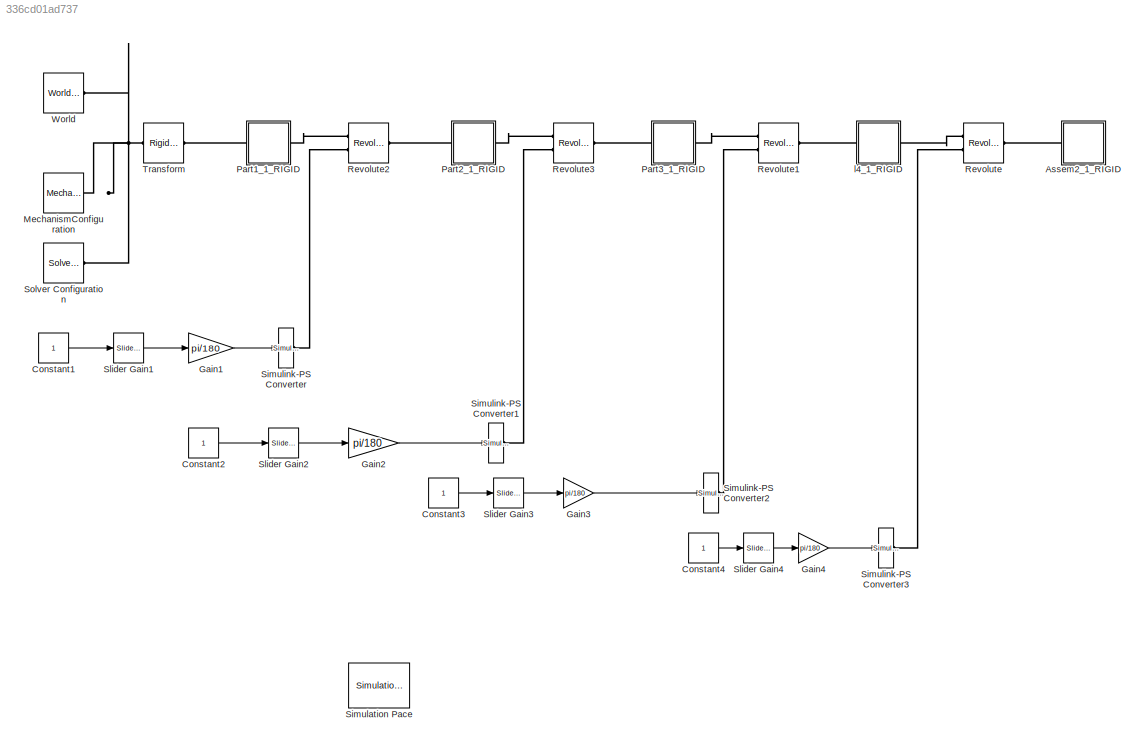
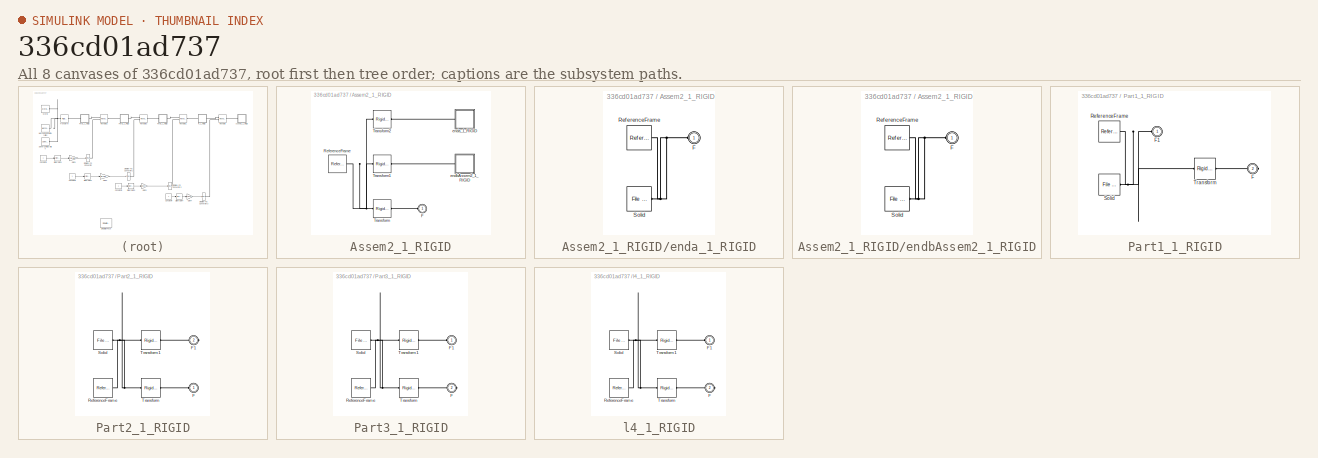
[diagram: thumbnail index - all 8 canvases of the model, root first then tree order]
MODEL slx_336cd01ad737
KIND model
CONFIG AbsTol = auto
CONFIG EnableMultiTasking = off
CONFIG FixedStep = 0.1
CONFIG MaxStep = auto
CONFIG MinStep = auto
CONFIG RelTol = 1e-3
CONFIG SampleTimeConstraint = Unconstrained
CONFIG SolverName = VariableStepAuto
CONFIG StartFcn = 1
CONFIG StartTime = 0.0
CONFIG StopTime = inf
WORKSPACE source: external: MATLAB File  (data not in archive)
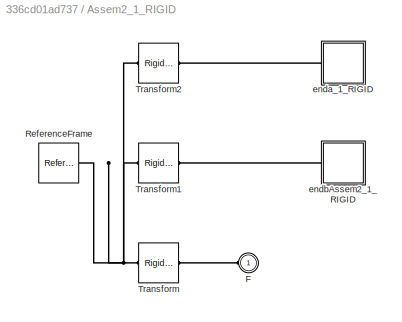
BLOCK [SubSystem] Assem2_1_RIGID
  Ports = [0, 0, 0, 0, 0, 1]
  RequestExecContextInheritance = off
BLOCK [PMIOPort] Assem2_1_RIGID/F
  Side = Left
BLOCK [Reference] Assem2_1_RIGID/ReferenceFrame  REF=sm_lib/Frames and
Transforms/Reference
Frame
  Ports = [0, 0, 0, 0, 0, 0, 1]
  SourceBlock = sm_lib/Frames and\nTransforms/Reference\nFrame
  SourceProductBaseCode = MS
  SourceType = Reference\nFrame
BLOCK [Reference] Assem2_1_RIGID/Transform  REF=sm_lib/Frames and
Transforms/Rigid
Transform
  Ports = [0, 0, 0, 0, 0, 1, 1]
  SourceBlock = sm_lib/Frames and\nTransforms/Rigid\nTransform
  SourceProductBaseCode = MS
  SourceType = Rigid\nTransform
BLOCK [Reference] Assem2_1_RIGID/Transform1  REF=sm_lib/Frames and
Transforms/Rigid
Transform
  Ports = [0, 0, 0, 0, 0, 1, 1]
  SourceBlock = sm_lib/Frames and\nTransforms/Rigid\nTransform
  SourceProductBaseCode = MS
  SourceType = Rigid\nTransform
BLOCK [Reference] Assem2_1_RIGID/Transform2  REF=sm_lib/Frames and
Transforms/Rigid
Transform
  Ports = [0, 0, 0, 0, 0, 1, 1]
  SourceBlock = sm_lib/Frames and\nTransforms/Rigid\nTransform
  SourceProductBaseCode = MS
  SourceType = Rigid\nTransform
BLOCK [SubSystem] Assem2_1_RIGID/enda_1_RIGID
  Ports = [0, 0, 0, 0, 0, 1]
  RequestExecContextInheritance = off
BLOCK [PMIOPort] Assem2_1_RIGID/enda_1_RIGID/F
  Side = Left
BLOCK [Reference] Assem2_1_RIGID/enda_1_RIGID/ReferenceFrame  REF=sm_lib/Frames and
Transforms/Reference
Frame
  Ports = [0, 0, 0, 0, 0, 0, 1]
  SourceBlock = sm_lib/Frames and\nTransforms/Reference\nFrame
  SourceProductBaseCode = MS
  SourceType = Reference\nFrame
BLOCK [Reference] Assem2_1_RIGID/enda_1_RIGID/Solid  REF=sm_lib/Body Elements/File Solid
  Ports = [0, 0, 0, 0, 0, 0, 1]
  SourceBlock = sm_lib/Body Elements/File Solid
  SourceProductBaseCode = MS
  SourceType = File Solid
BLOCK [SubSystem] Assem2_1_RIGID/endbAssem2_1_RIGID
  Ports = [0, 0, 0, 0, 0, 1]
  RequestExecContextInheritance = off
BLOCK [PMIOPort] Assem2_1_RIGID/endbAssem2_1_RIGID/F
  Side = Left
BLOCK [Reference] Assem2_1_RIGID/endbAssem2_1_RIGID/ReferenceFrame  REF=sm_lib/Frames and
Transforms/Reference
Frame
  Ports = [0, 0, 0, 0, 0, 0, 1]
  SourceBlock = sm_lib/Frames and\nTransforms/Reference\nFrame
  SourceProductBaseCode = MS
  SourceType = Reference\nFrame
BLOCK [Reference] Assem2_1_RIGID/endbAssem2_1_RIGID/Solid  REF=sm_lib/Body Elements/File Solid
  Ports = [0, 0, 0, 0, 0, 0, 1]
  SourceBlock = sm_lib/Body Elements/File Solid
  SourceProductBaseCode = MS
  SourceType = File Solid
BLOCK [Constant] Constant1
  SampleTime = 0.1
BLOCK [Constant] Constant2
  SampleTime = 0.1
BLOCK [Constant] Constant3
  SampleTime = 0.1
BLOCK [Constant] Constant4
  SampleTime = 0.1
BLOCK [Gain] Gain1
  Gain = pi/180
BLOCK [Gain] Gain2
  Gain = pi/180
BLOCK [Gain] Gain3
  Gain = pi/180
BLOCK [Gain] Gain4
  Gain = pi/180
BLOCK [Reference] MechanismConfiguration  REF=sm_lib/Utilities/Mechanism
Configuration
  Ports = [0, 0, 0, 0, 0, 0, 1]
  SourceBlock = sm_lib/Utilities/Mechanism\nConfiguration
  SourceProductBaseCode = MS
  SourceType = Mechanism\nConfiguration
BLOCK [SubSystem] Part1_1_RIGID
  Ports = [0, 0, 0, 0, 0, 1, 1]
  RequestExecContextInheritance = off
BLOCK [PMIOPort] Part1_1_RIGID/F
  Port = 2
  Side = Right
BLOCK [PMIOPort] Part1_1_RIGID/F1
  Side = Left
BLOCK [Reference] Part1_1_RIGID/ReferenceFrame  REF=sm_lib/Frames and
Transforms/Reference
Frame
  Ports = [0, 0, 0, 0, 0, 0, 1]
  SourceBlock = sm_lib/Frames and\nTransforms/Reference\nFrame
  SourceProductBaseCode = MS
  SourceType = Reference\nFrame
BLOCK [Reference] Part1_1_RIGID/Solid  REF=sm_lib/Body Elements/File Solid
  Ports = [0, 0, 0, 0, 0, 0, 1]
  SourceBlock = sm_lib/Body Elements/File Solid
  SourceProductBaseCode = MS
  SourceType = File Solid
BLOCK [Reference] Part1_1_RIGID/Transform  REF=sm_lib/Frames and
Transforms/Rigid
Transform
  Ports = [0, 0, 0, 0, 0, 1, 1]
  SourceBlock = sm_lib/Frames and\nTransforms/Rigid\nTransform
  SourceProductBaseCode = MS
  SourceType = Rigid\nTransform
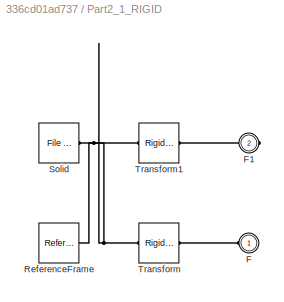
BLOCK [SubSystem] Part2_1_RIGID
  Ports = [0, 0, 0, 0, 0, 1, 1]
  RequestExecContextInheritance = off
BLOCK [PMIOPort] Part2_1_RIGID/F
  Side = Left
BLOCK [PMIOPort] Part2_1_RIGID/F1
  Port = 2
  Side = Right
BLOCK [Reference] Part2_1_RIGID/ReferenceFrame  REF=sm_lib/Frames and
Transforms/Reference
Frame
  Ports = [0, 0, 0, 0, 0, 0, 1]
  SourceBlock = sm_lib/Frames and\nTransforms/Reference\nFrame
  SourceProductBaseCode = MS
  SourceType = Reference\nFrame
BLOCK [Reference] Part2_1_RIGID/Solid  REF=sm_lib/Body Elements/File Solid
  Ports = [0, 0, 0, 0, 0, 0, 1]
  SourceBlock = sm_lib/Body Elements/File Solid
  SourceProductBaseCode = MS
  SourceType = File Solid
BLOCK [Reference] Part2_1_RIGID/Transform  REF=sm_lib/Frames and
Transforms/Rigid
Transform
  Ports = [0, 0, 0, 0, 0, 1, 1]
  SourceBlock = sm_lib/Frames and\nTransforms/Rigid\nTransform
  SourceProductBaseCode = MS
  SourceType = Rigid\nTransform
BLOCK [Reference] Part2_1_RIGID/Transform1  REF=sm_lib/Frames and
Transforms/Rigid
Transform
  Ports = [0, 0, 0, 0, 0, 1, 1]
  SourceBlock = sm_lib/Frames and\nTransforms/Rigid\nTransform
  SourceProductBaseCode = MS
  SourceType = Rigid\nTransform
BLOCK [SubSystem] Part3_1_RIGID
  Ports = [0, 0, 0, 0, 0, 1, 1]
  RequestExecContextInheritance = off
BLOCK [PMIOPort] Part3_1_RIGID/F
  Port = 2
  Side = Right
BLOCK [PMIOPort] Part3_1_RIGID/F1
  Side = Left
BLOCK [Reference] Part3_1_RIGID/ReferenceFrame  REF=sm_lib/Frames and
Transforms/Reference
Frame
  Ports = [0, 0, 0, 0, 0, 0, 1]
  SourceBlock = sm_lib/Frames and\nTransforms/Reference\nFrame
  SourceProductBaseCode = MS
  SourceType = Reference\nFrame
BLOCK [Reference] Part3_1_RIGID/Solid  REF=sm_lib/Body Elements/File Solid
  Ports = [0, 0, 0, 0, 0, 0, 1]
  SourceBlock = sm_lib/Body Elements/File Solid
  SourceProductBaseCode = MS
  SourceType = File Solid
BLOCK [Reference] Part3_1_RIGID/Transform  REF=sm_lib/Frames and
Transforms/Rigid
Transform
  Ports = [0, 0, 0, 0, 0, 1, 1]
  SourceBlock = sm_lib/Frames and\nTransforms/Rigid\nTransform
  SourceProductBaseCode = MS
  SourceType = Rigid\nTransform
BLOCK [Reference] Part3_1_RIGID/Transform1  REF=sm_lib/Frames and
Transforms/Rigid
Transform
  Ports = [0, 0, 0, 0, 0, 1, 1]
  SourceBlock = sm_lib/Frames and\nTransforms/Rigid\nTransform
  SourceProductBaseCode = MS
  SourceType = Rigid\nTransform
BLOCK [Reference] Revolute  REF=sm_lib/Joints/Revolute Joint
  Ports = [0, 0, 0, 0, 0, 2, 1]
  SourceBlock = sm_lib/Joints/Revolute Joint
  SourceProductBaseCode = MS
  SourceType = Revolute Joint
BLOCK [Reference] Revolute1  REF=sm_lib/Joints/Revolute Joint
  Ports = [0, 0, 0, 0, 0, 2, 1]
  SourceBlock = sm_lib/Joints/Revolute Joint
  SourceProductBaseCode = MS
  SourceType = Revolute Joint
BLOCK [Reference] Revolute2  REF=sm_lib/Joints/Revolute Joint
  Ports = [0, 0, 0, 0, 0, 2, 1]
  SourceBlock = sm_lib/Joints/Revolute Joint
  SourceProductBaseCode = MS
  SourceType = Revolute Joint
BLOCK [Reference] Revolute3  REF=sm_lib/Joints/Revolute Joint
  Ports = [0, 0, 0, 0, 0, 2, 1]
  SourceBlock = sm_lib/Joints/Revolute Joint
  SourceProductBaseCode = MS
  SourceType = Revolute Joint
BLOCK [Reference] Simulation Pace  REF=aerolibanimutils/Simulation Pace
  AttributesFormatString = %<SleepMode>\n%<SimulationPace> sec/sec
  Ports = []
  SourceBlock = aerolibanimutils/Simulation Pace
  SourceProductBaseCode = AE
  SourceType = Simulation Pace
BLOCK [Reference] Simulink-PS Converter  REF=nesl_utility/Simulink-PS
Converter
  Ports = [1, 0, 0, 0, 0, 0, 1]
  SourceBlock = nesl_utility/Simulink-PS\nConverter
  SourceProductBaseCode = SS,PW,VE
  SourceType = Simulink-PS\nConverter
BLOCK [Reference] Simulink-PS Converter1  REF=nesl_utility/Simulink-PS
Converter
  Ports = [1, 0, 0, 0, 0, 0, 1]
  SourceBlock = nesl_utility/Simulink-PS\nConverter
  SourceProductBaseCode = SS,PW,VE
  SourceType = Simulink-PS\nConverter
BLOCK [Reference] Simulink-PS Converter2  REF=nesl_utility/Simulink-PS
Converter
  Ports = [1, 0, 0, 0, 0, 0, 1]
  SourceBlock = nesl_utility/Simulink-PS\nConverter
  SourceProductBaseCode = SS,PW,VE
  SourceType = Simulink-PS\nConverter
BLOCK [Reference] Simulink-PS Converter3  REF=nesl_utility/Simulink-PS
Converter
  Ports = [1, 0, 0, 0, 0, 0, 1]
  SourceBlock = nesl_utility/Simulink-PS\nConverter
  SourceProductBaseCode = SS,PW,VE
  SourceType = Simulink-PS\nConverter
BLOCK [Reference] Slider Gain1  REF=simulink/Math
Operations/Slider
Gain
  Ports = [1, 1]
  SourceBlock = simulink/Math\nOperations/Slider\nGain
  SourceProductBaseCode = SL
  SourceType = Slider Gain
BLOCK [Reference] Slider Gain2  REF=simulink/Math
Operations/Slider
Gain
  Ports = [1, 1]
  SourceBlock = simulink/Math\nOperations/Slider\nGain
  SourceProductBaseCode = SL
  SourceType = Slider Gain
BLOCK [Reference] Slider Gain3  REF=simulink/Math
Operations/Slider
Gain
  Ports = [1, 1]
  SourceBlock = simulink/Math\nOperations/Slider\nGain
  SourceProductBaseCode = SL
  SourceType = Slider Gain
BLOCK [Reference] Slider Gain4  REF=simulink/Math
Operations/Slider
Gain
  Ports = [1, 1]
  SourceBlock = simulink/Math\nOperations/Slider\nGain
  SourceProductBaseCode = SL
  SourceType = Slider Gain
BLOCK [Reference] Solver Configuration  REF=nesl_utility/Solver
Configuration
  Ports = [0, 0, 0, 0, 0, 0, 1]
  SourceBlock = nesl_utility/Solver\nConfiguration
  SourceProductBaseCode = SS,PW,VE
  SourceType = Solver\nConfiguration
BLOCK [Reference] Transform  REF=sm_lib/Frames and
Transforms/Rigid
Transform
  Ports = [0, 0, 0, 0, 0, 1, 1]
  SourceBlock = sm_lib/Frames and\nTransforms/Rigid\nTransform
  SourceProductBaseCode = MS
  SourceType = Rigid\nTransform
BLOCK [Reference] World  REF=sm_lib/Frames and
Transforms/World Frame
  Ports = [0, 0, 0, 0, 0, 0, 1]
  SourceBlock = sm_lib/Frames and\nTransforms/World Frame
  SourceProductBaseCode = MS
  SourceType = World Frame
BLOCK [SubSystem] l4_1_RIGID
  Ports = [0, 0, 0, 0, 0, 1, 1]
  RequestExecContextInheritance = off
BLOCK [PMIOPort] l4_1_RIGID/F
  Port = 2
  Side = Right
BLOCK [PMIOPort] l4_1_RIGID/F1
  Side = Left
BLOCK [Reference] l4_1_RIGID/ReferenceFrame  REF=sm_lib/Frames and
Transforms/Reference
Frame
  Ports = [0, 0, 0, 0, 0, 0, 1]
  SourceBlock = sm_lib/Frames and\nTransforms/Reference\nFrame
  SourceProductBaseCode = MS
  SourceType = Reference\nFrame
BLOCK [Reference] l4_1_RIGID/Solid  REF=sm_lib/Body Elements/File Solid
  Ports = [0, 0, 0, 0, 0, 0, 1]
  SourceBlock = sm_lib/Body Elements/File Solid
  SourceProductBaseCode = MS
  SourceType = File Solid
BLOCK [Reference] l4_1_RIGID/Transform  REF=sm_lib/Frames and
Transforms/Rigid
Transform
  Ports = [0, 0, 0, 0, 0, 1, 1]
  SourceBlock = sm_lib/Frames and\nTransforms/Rigid\nTransform
  SourceProductBaseCode = MS
  SourceType = Rigid\nTransform
BLOCK [Reference] l4_1_RIGID/Transform1  REF=sm_lib/Frames and
Transforms/Rigid
Transform
  Ports = [0, 0, 0, 0, 0, 1, 1]
  SourceBlock = sm_lib/Frames and\nTransforms/Rigid\nTransform
  SourceProductBaseCode = MS
  SourceType = Rigid\nTransform
LINE Constant1:1 -> Slider Gain1:1
LINE Constant2:1 -> Slider Gain2:1
LINE Constant3:1 -> Slider Gain3:1
LINE Constant4:1 -> Slider Gain4:1
LINE Gain1:1 -> Simulink-PS Converter:1
LINE Gain2:1 -> Simulink-PS Converter1:1
LINE Gain3:1 -> Simulink-PS Converter2:1
LINE Gain4:1 -> Simulink-PS Converter3:1
LINE Slider Gain1:1 -> Gain1:1
LINE Slider Gain2:1 -> Gain2:1
LINE Slider Gain3:1 -> Gain3:1
LINE Slider Gain4:1 -> Gain4:1
PLINE Assem2_1_RIGID/F:RConn1 -- Assem2_1_RIGID/Transform:RConn1
PNET net1: Assem2_1_RIGID/ReferenceFrame:RConn1 -- Assem2_1_RIGID/Transform1:LConn1 -- Assem2_1_RIGID/Transform2:LConn1 -- Assem2_1_RIGID/Transform:LConn1
PLINE Assem2_1_RIGID/Transform1:RConn1 -- Assem2_1_RIGID/endbAssem2_1_RIGID:LConn1
PLINE Assem2_1_RIGID/Transform2:RConn1 -- Assem2_1_RIGID/enda_1_RIGID:LConn1
PNET net2: Assem2_1_RIGID/enda_1_RIGID/F:RConn1 -- Assem2_1_RIGID/enda_1_RIGID/ReferenceFrame:RConn1 -- Assem2_1_RIGID/enda_1_RIGID/Solid:RConn1
PNET net3: Assem2_1_RIGID/endbAssem2_1_RIGID/F:RConn1 -- Assem2_1_RIGID/endbAssem2_1_RIGID/ReferenceFrame:RConn1 -- Assem2_1_RIGID/endbAssem2_1_RIGID/Solid:RConn1
PLINE Assem2_1_RIGID:LConn1 -- Revolute:RConn1
PNET net4: MechanismConfiguration:RConn1 -- Solver Configuration:RConn1 -- Transform:LConn1 -- World:RConn1
PNET net5: Part1_1_RIGID/F1:RConn1 -- Part1_1_RIGID/ReferenceFrame:RConn1 -- Part1_1_RIGID/Solid:RConn1 -- Part1_1_RIGID/Transform:LConn1
PLINE Part1_1_RIGID/F:RConn1 -- Part1_1_RIGID/Transform:RConn1
PLINE Part1_1_RIGID:LConn1 -- Transform:RConn1
PLINE Part1_1_RIGID:RConn1 -- Revolute2:LConn1
PLINE Part2_1_RIGID/F1:RConn1 -- Part2_1_RIGID/Transform1:RConn1
PLINE Part2_1_RIGID/F:RConn1 -- Part2_1_RIGID/Transform:RConn1
PNET net6: Part2_1_RIGID/ReferenceFrame:RConn1 -- Part2_1_RIGID/Solid:RConn1 -- Part2_1_RIGID/Transform1:LConn1 -- Part2_1_RIGID/Transform:LConn1
PLINE Part2_1_RIGID:LConn1 -- Revolute2:RConn1
PLINE Part2_1_RIGID:RConn1 -- Revolute3:LConn1
PLINE Part3_1_RIGID/F1:RConn1 -- Part3_1_RIGID/Transform1:RConn1
PLINE Part3_1_RIGID/F:RConn1 -- Part3_1_RIGID/Transform:RConn1
PNET net7: Part3_1_RIGID/ReferenceFrame:RConn1 -- Part3_1_RIGID/Solid:RConn1 -- Part3_1_RIGID/Transform1:LConn1 -- Part3_1_RIGID/Transform:LConn1
PLINE Part3_1_RIGID:LConn1 -- Revolute3:RConn1
PLINE Part3_1_RIGID:RConn1 -- Revolute1:LConn1
PLINE Revolute1:LConn2 -- Simulink-PS Converter2:RConn1
PLINE Revolute1:RConn1 -- l4_1_RIGID:LConn1
PLINE Revolute2:LConn2 -- Simulink-PS Converter:RConn1
PLINE Revolute3:LConn2 -- Simulink-PS Converter1:RConn1
PLINE Revolute:LConn1 -- l4_1_RIGID:RConn1
PLINE Revolute:LConn2 -- Simulink-PS Converter3:RConn1
PLINE l4_1_RIGID/F1:RConn1 -- l4_1_RIGID/Transform1:RConn1
PLINE l4_1_RIGID/F:RConn1 -- l4_1_RIGID/Transform:RConn1
PNET net8: l4_1_RIGID/ReferenceFrame:RConn1 -- l4_1_RIGID/Solid:RConn1 -- l4_1_RIGID/Transform1:LConn1 -- l4_1_RIGID/Transform:LConn1
note: PNET lines group multi-terminal physical nets as a canonical sorted terminal list (undirected conserving connections); 2-terminal nets keep the pairwise PLINE form
